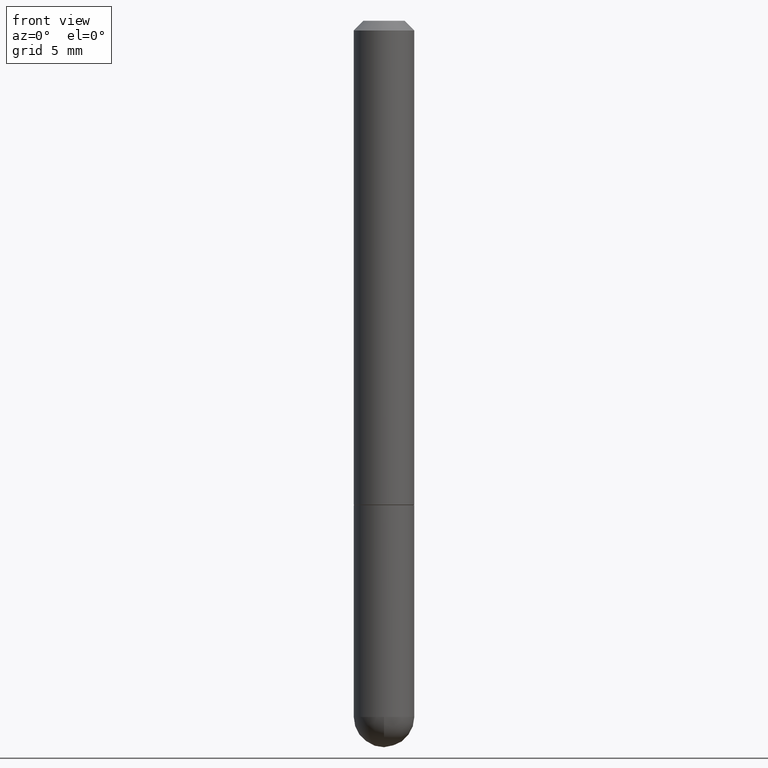
[diagram: clean part render]
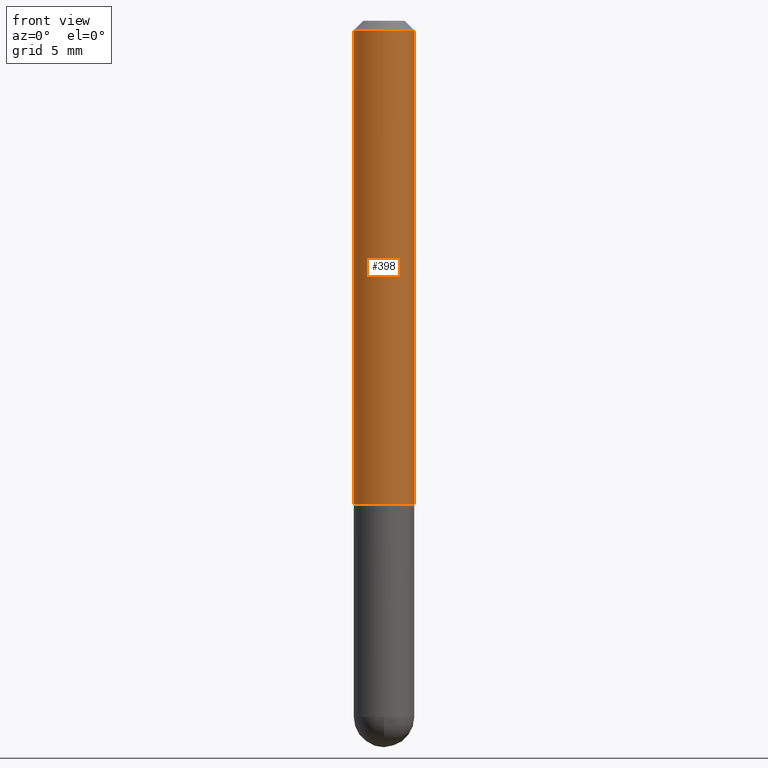
[diagram: same view with one face highlighted and labeled with its STEP entity id]
A machine part, front view. The second image highlights one B-rep face of the part: STEP entity #398.
In plain terms, the highlighted cylindrical surface (edge-blend (fillet) strip) has radius 1.5875 mm, axis along (-0, 0, 1).
Its self-contained STEP definition (entity closure, byte-faithful):
#12 = CARTESIAN_POINT ( 'NONE',  ( 0.06250000000000004163, -4.364351673553919652E-16, 3.047610484872461972E-30 ) ) ;
#21 = VERTEX_POINT ( 'NONE', #408 ) ;
#45 = CARTESIAN_POINT ( 'NONE',  ( 0.06250000000000013878, -3.924425024859695428E-15, -0.9990000000000002212 ) ) ;
#46 = VECTOR ( 'NONE', #115, 39.37007874015748143 ) ;
#66 = EDGE_LOOP ( 'NONE', ( #278, #122, #380, #202 ) ) ;
#75 = VECTOR ( 'NONE', #108, 39.37007874015748143 ) ;
#108 = DIRECTION ( 'NONE',  ( -2.445468806185136877E-29, 3.491481338843145188E-15, 1.000000000000000000 ) ) ;
#115 = DIRECTION ( 'NONE',  ( -2.445468806185136877E-29, 3.491481338843145188E-15, 1.000000000000000000 ) ) ;
#122 = ORIENTED_EDGE ( 'NONE', *, *, #206, .T. ) ;
#126 = DIRECTION ( 'NONE',  ( 1.000000000000000000, -6.982962677686266711E-15, 0.000000000000000000 ) ) ;
#127 = VERTEX_POINT ( 'NONE', #45 ) ;
#130 = EDGE_CURVE ( 'NONE', #127, #21, #339, .T. ) ;
#134 = CARTESIAN_POINT ( 'NONE',  ( -0.06250000000000013878, -1.334820532290516771E-15, -0.9990000000000002212 ) ) ;
#142 = CARTESIAN_POINT ( 'NONE',  ( -0.06250000000000004163, 4.440892098500629120E-16, -3.074334431409318216E-30 ) ) ;
#157 = AXIS2_PLACEMENT_3D ( 'NONE', #334, #245, #266 ) ;
#159 = CYLINDRICAL_SURFACE ( 'NONE', #365, 0.06250000000000004163 ) ;
#161 = DIRECTION ( 'NONE',  ( 1.000000000000000000, -6.982962677686266711E-15, 4.876176775795935793E-29 ) ) ;
#189 = AXIS2_PLACEMENT_3D ( 'NONE', #285, #411, #126 ) ;
#192 = CARTESIAN_POINT ( 'NONE',  ( 0.000000000000000000, 0.000000000000000000, 0.000000000000000000 ) ) ;
#202 = ORIENTED_EDGE ( 'NONE', *, *, #409, .F. ) ;
#206 = EDGE_CURVE ( 'NONE', #383, #127, #244, .T. ) ;
#221 = EDGE_CURVE ( 'NONE', #383, #377, #389, .T. ) ;
#223 = CARTESIAN_POINT ( 'NONE',  ( -0.06249999999999995143, 3.666055405785281740E-16, -0.02000000000000006981 ) ) ;
#244 = CIRCLE ( 'NONE', #157, 0.06250000000000013878 ) ;
#245 = DIRECTION ( 'NONE',  ( -2.445468806185136597E-29, 3.491481338843145583E-15, 1.000000000000000000 ) ) ;
#266 = DIRECTION ( 'NONE',  ( 1.000000000000000000, -6.982962677686270655E-15, 0.000000000000000000 ) ) ;
#278 = ORIENTED_EDGE ( 'NONE', *, *, #221, .F. ) ;
#280 = CIRCLE ( 'NONE', #189, 0.06249999999999995143 ) ;
#285 = CARTESIAN_POINT ( 'NONE',  ( 4.890937612370289799E-31, -6.982962677686315028E-17, -0.02000000000000006981 ) ) ;
#297 = DIRECTION ( 'NONE',  ( -2.445468806185136597E-29, 3.491481338843145583E-15, 1.000000000000000000 ) ) ;
#334 = CARTESIAN_POINT ( 'NONE',  ( 2.443023337378951835E-29, -3.487989857504302970E-15, -0.9990000000000002212 ) ) ;
#339 = LINE ( 'NONE', #12, #75 ) ;
#365 = AXIS2_PLACEMENT_3D ( 'NONE', #192, #297, #161 ) ;
#374 = FACE_OUTER_BOUND ( 'NONE', #66, .T. ) ;
#377 = VERTEX_POINT ( 'NONE', #223 ) ;
#380 = ORIENTED_EDGE ( 'NONE', *, *, #130, .T. ) ;
#383 = VERTEX_POINT ( 'NONE', #134 ) ;
#389 = LINE ( 'NONE', #142, #46 ) ;
#398 = ADVANCED_FACE ( 'NONE', ( #374 ), #159, .T. ) ;
#408 = CARTESIAN_POINT ( 'NONE',  ( 0.06249999999999995143, -4.986107516375835278E-16, -0.02000000000000006981 ) ) ;
#409 = EDGE_CURVE ( 'NONE', #377, #21, #280, .T. ) ;
#411 = DIRECTION ( 'NONE',  ( -2.445468806185136597E-29, 3.491481338843145583E-15, 1.000000000000000000 ) ) ;